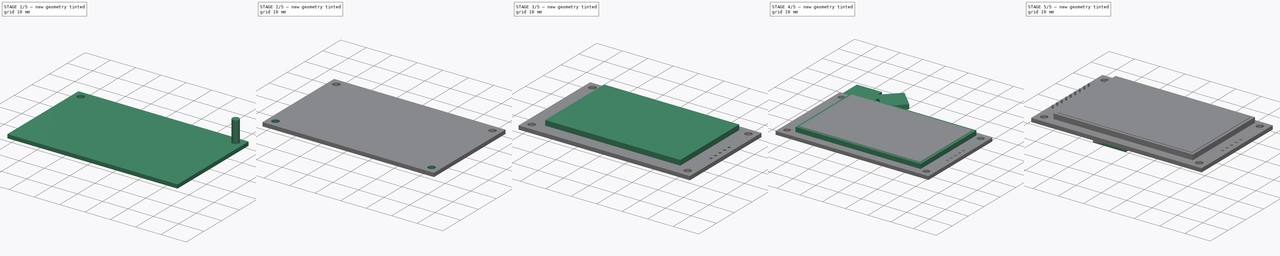
[diagram: build sequence overview — one tinted view per stage of 5, left to right]
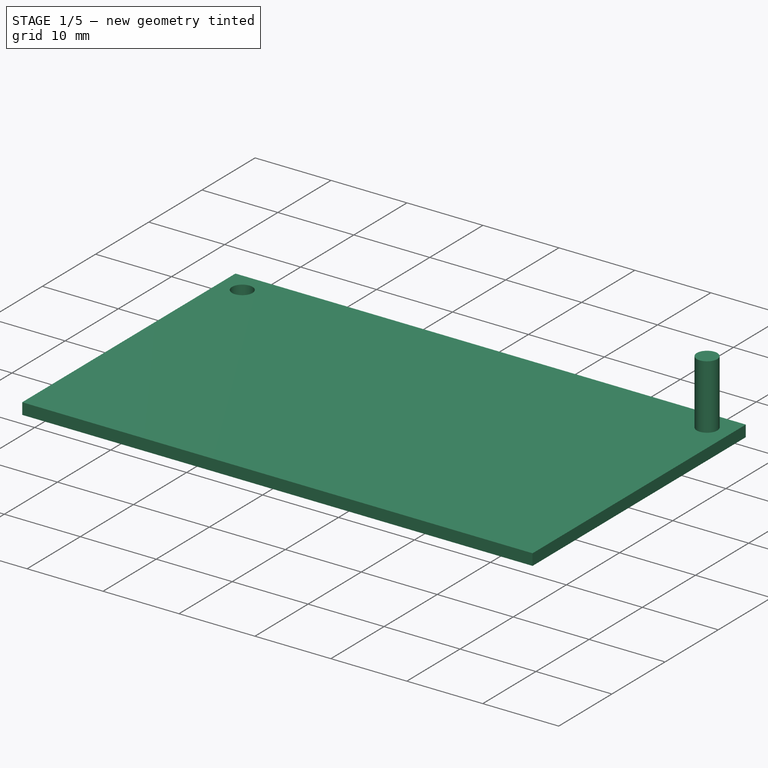
[diagram: stage 1 of 5 — iso view after this stage's code; geometry added in this stage tinted green]
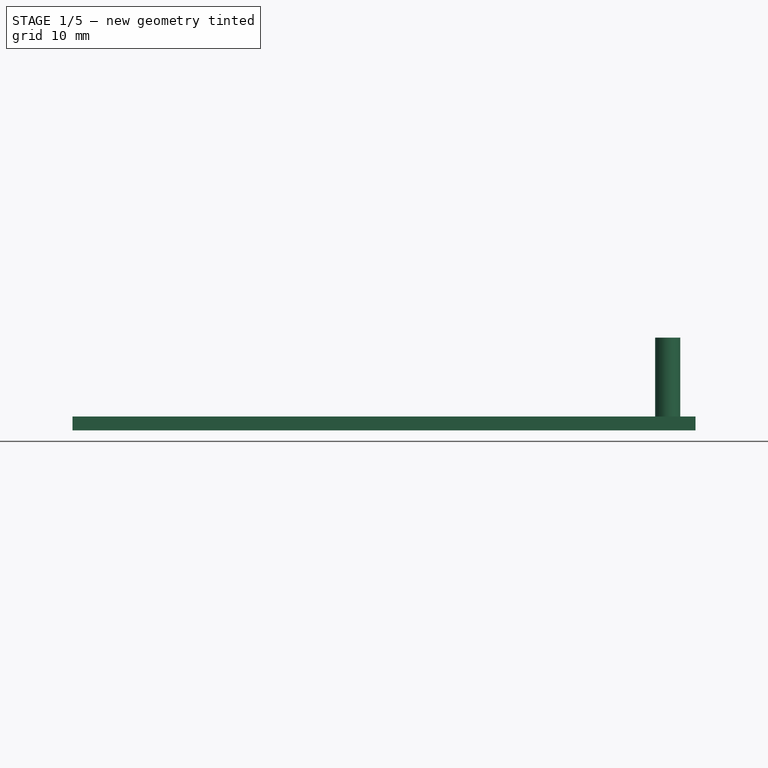
[diagram: stage 1 of 5 — front view after this stage's code; geometry added in this stage tinted green]
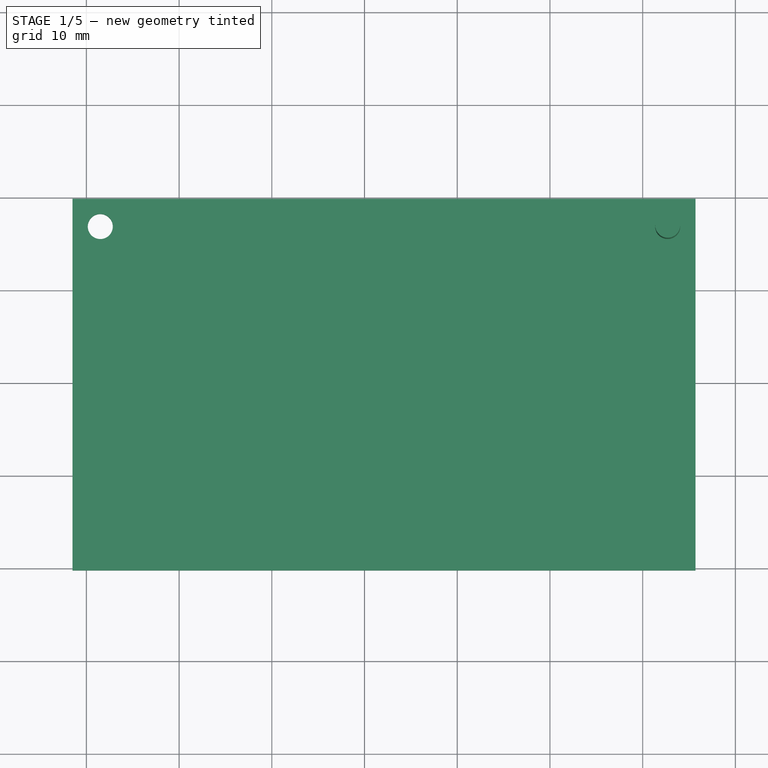
[diagram: stage 1 of 5 — top view after this stage's code; geometry added in this stage tinted green]
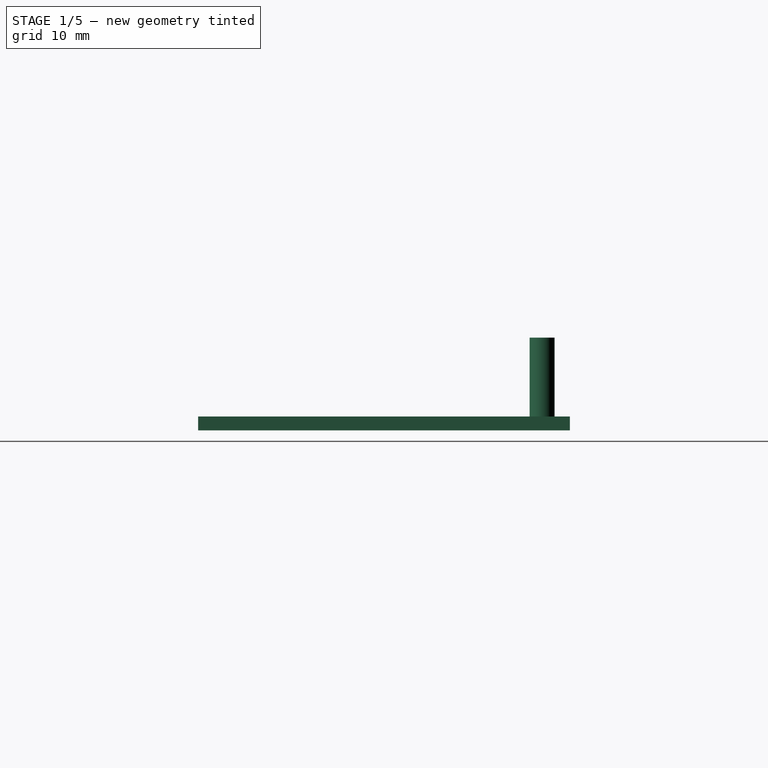
[diagram: stage 1 of 5 — right view after this stage's code; geometry added in this stage tinted green]
FCSTD DOCUMENT  (FreeCAD 0.17R11223 (Git))
Label: CR2013-MI2120_4
License: All rights reserved
LicenseURL: http://en.wikipedia.org/wiki/All_rights_reserved
objects: Part::Box×7, Part::Cut×7, Part::Cylinder×5, Part::FeaturePython×2, Sketcher::SketchObject×1, PartDesign::Pad×1, PartDesign::Body×1
note: 25 computed .brp shape members not serialized (recipe doc carries the construction recipe); baked Part::Feature solids carry a one-line shape summary decoded from their .brp

FEATURE [Sketcher::SketchObject] Sketch
  MapMode = 5
  Support = -> [XY_Plane]
  sketch-geometry (4):
    g0: LineSegment StartX=-1.5 StartY=9.89 StartZ=0 EndX=65.7 EndY=9.89 EndZ=0
    g1: LineSegment StartX=65.7 StartY=9.89 StartZ=0 EndX=65.7 EndY=-30.21 EndZ=0
    g2: LineSegment StartX=65.7 StartY=-30.21 StartZ=0 EndX=-1.5 EndY=-30.21 EndZ=0
    g3: LineSegment StartX=-1.5 StartY=-30.21 StartZ=0 EndX=-1.5 EndY=9.89 EndZ=0
  constraints (12):
    c: Coincident(g0,g1)
    c: Coincident(g1,g2)
    c: Coincident(g2,g3)
    c: Coincident(g3,g0)
    c: Horizontal(g0)
    c: Horizontal(g2)
    c: Vertical(g1)
    c: Vertical(g3)
    c: DistanceX(g0,g0) = 67.2
    c: DistanceY(g1,g0) = 40.1
    c: DistanceY(g-1,g0) = 9.89
    c: DistanceX(g0,g-1) = 1.5
FEATURE [PartDesign::Pad] Pad
  Length = 1.5
  Length2 = 100
  Profile = -> Sketch
  Type = 0
FEATURE [Part::Cylinder] Cylinder  label="Hole001"
  Angle = 360
  AttacherType = Attacher::AttachEngine3D
  Height = 10
  Placement = pos=(1.5,6.89,1.4) rot=(0,0,1;0rad)
  Radius = 1.35
FEATURE [Part::Cylinder] Cylinder003  label="Hole004"
  Angle = 360
  AttacherType = Attacher::AttachEngine3D
  Height = 10
  Placement = pos=(62.7,6.89,1.4) rot=(0,0,1;0rad)
  Radius = 1.35
FEATURE [Part::Cut] Cut002
  Base = -> Body
  Tool = -> Cylinder
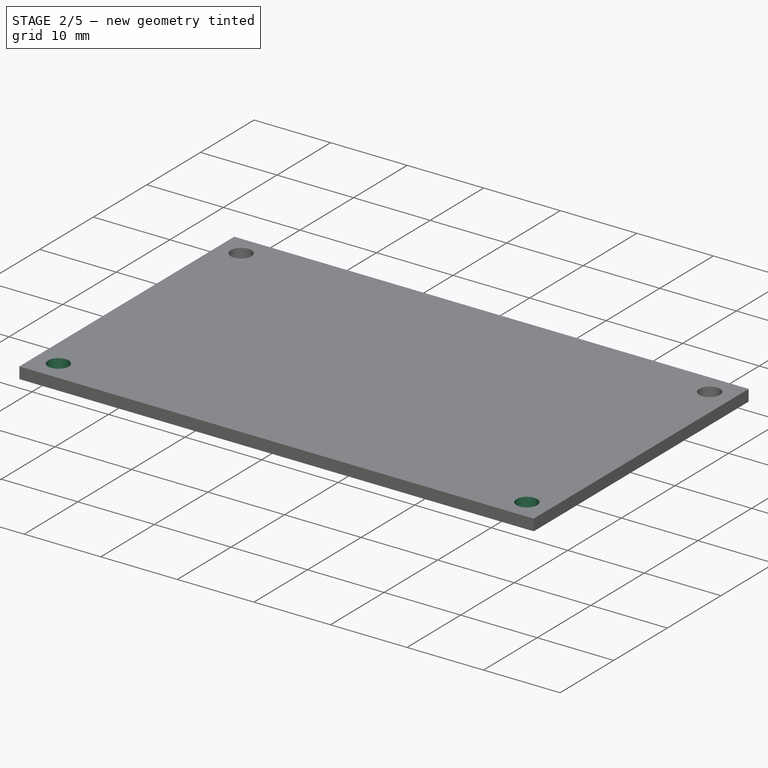
[diagram: stage 2 of 5 — iso view after this stage's code; geometry added in this stage tinted green]
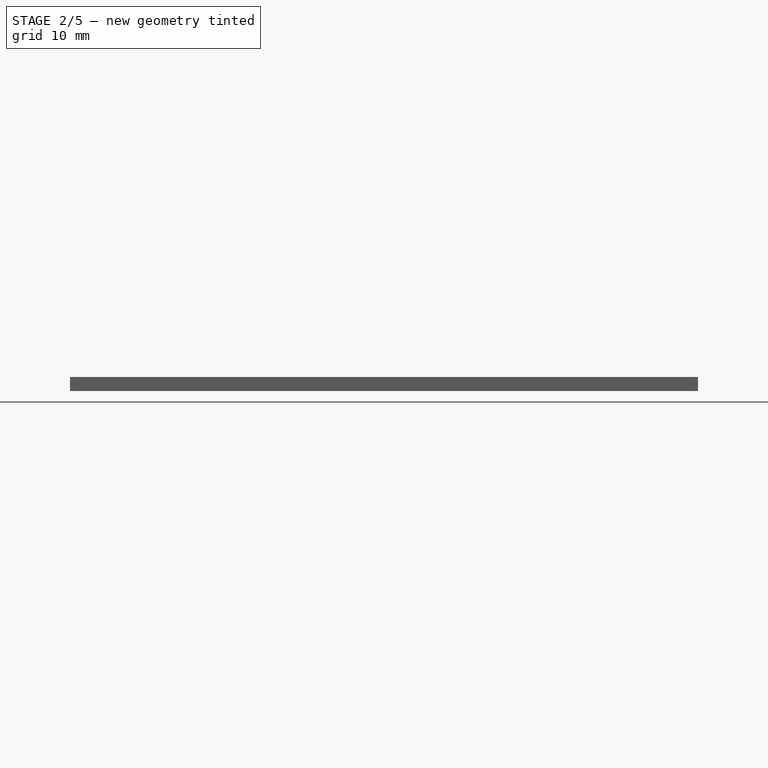
[diagram: stage 2 of 5 — front view after this stage's code; geometry added in this stage tinted green]
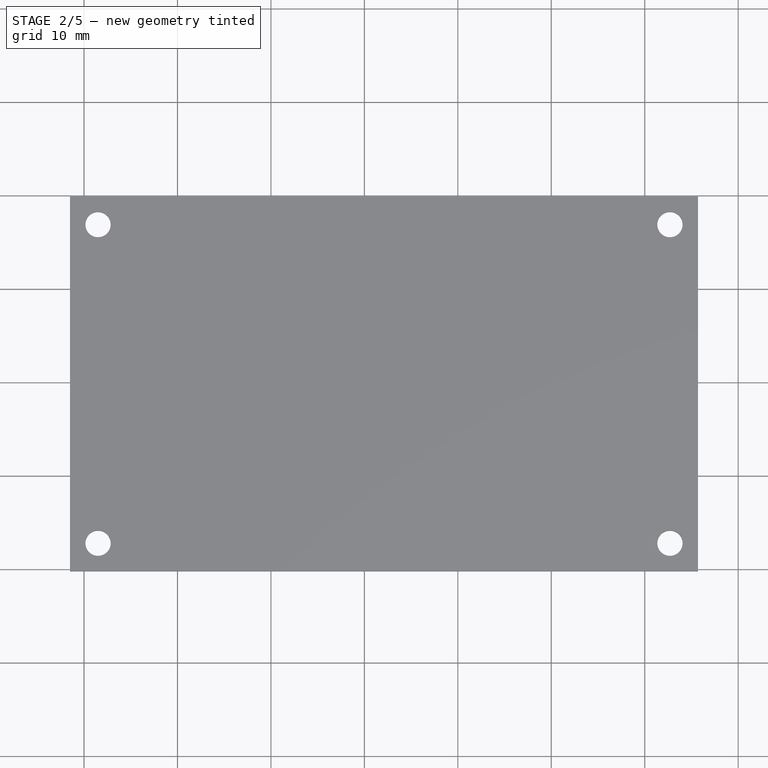
[diagram: stage 2 of 5 — top view after this stage's code; geometry added in this stage tinted green]
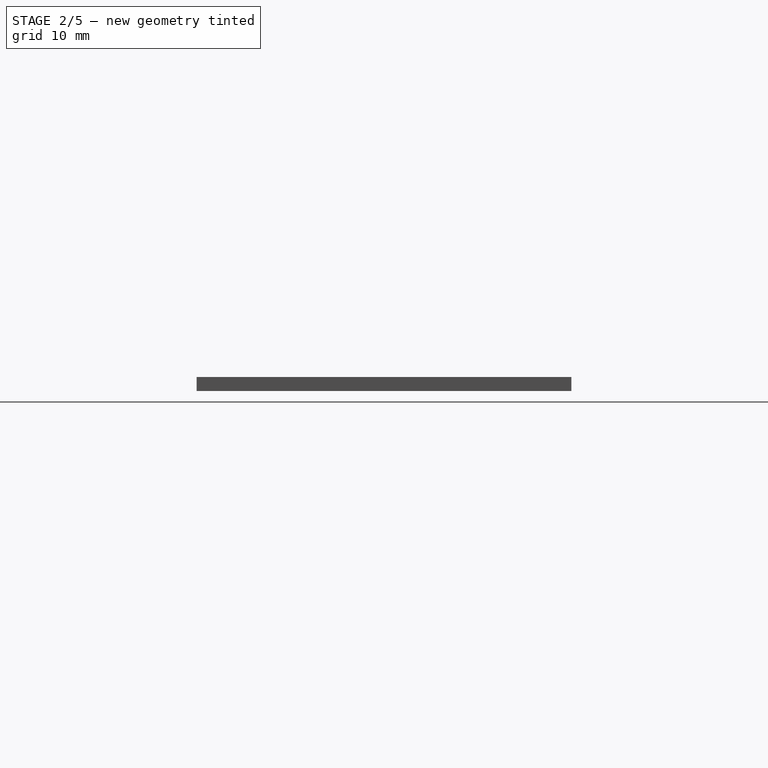
[diagram: stage 2 of 5 — right view after this stage's code; geometry added in this stage tinted green]
FEATURE [Part::Cylinder] Cylinder001  label="Hole002"
  Angle = 360
  AttacherType = Attacher::AttachEngine3D
  Height = 10
  Placement = pos=(1.5,-27.21,1.4) rot=(0,0,1;0rad)
  Radius = 1.35
FEATURE [Part::Cylinder] Cylinder002  label="Hole003"
  Angle = 360
  AttacherType = Attacher::AttachEngine3D
  Height = 10
  Placement = pos=(62.7,-27.21,1.4) rot=(0,0,1;0rad)
  Radius = 1.35
FEATURE [Part::Cut] Cut003
  Base = -> Cut002
  Tool = -> Cylinder003
FEATURE [Part::Cut] Cut004
  Base = -> Cut003
  Tool = -> Cylinder002
FEATURE [Part::Cut] Cut005
  Base = -> Cut004
  Tool = -> Cylinder001
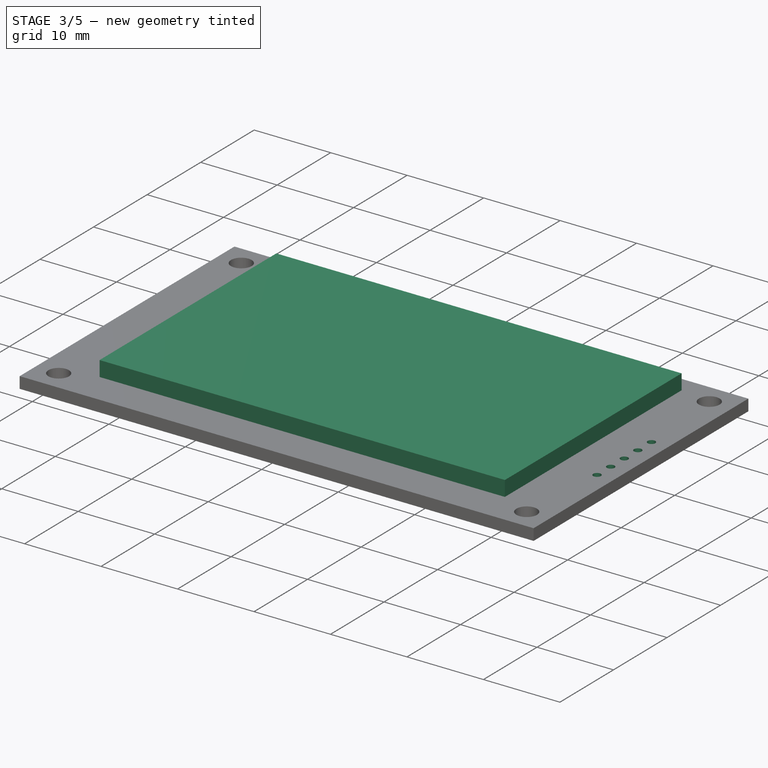
[diagram: stage 3 of 5 — iso view after this stage's code; geometry added in this stage tinted green]
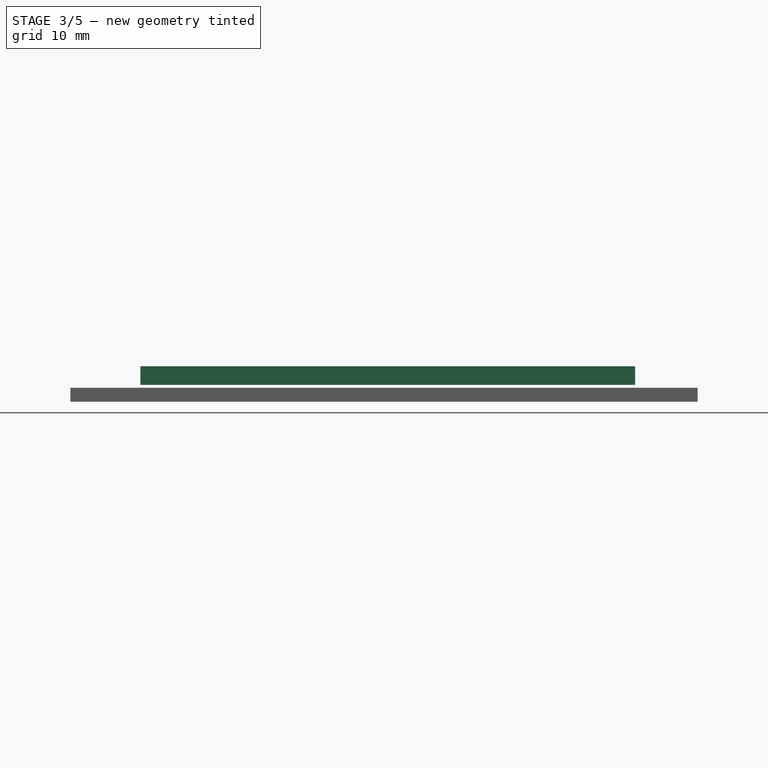
[diagram: stage 3 of 5 — front view after this stage's code; geometry added in this stage tinted green]
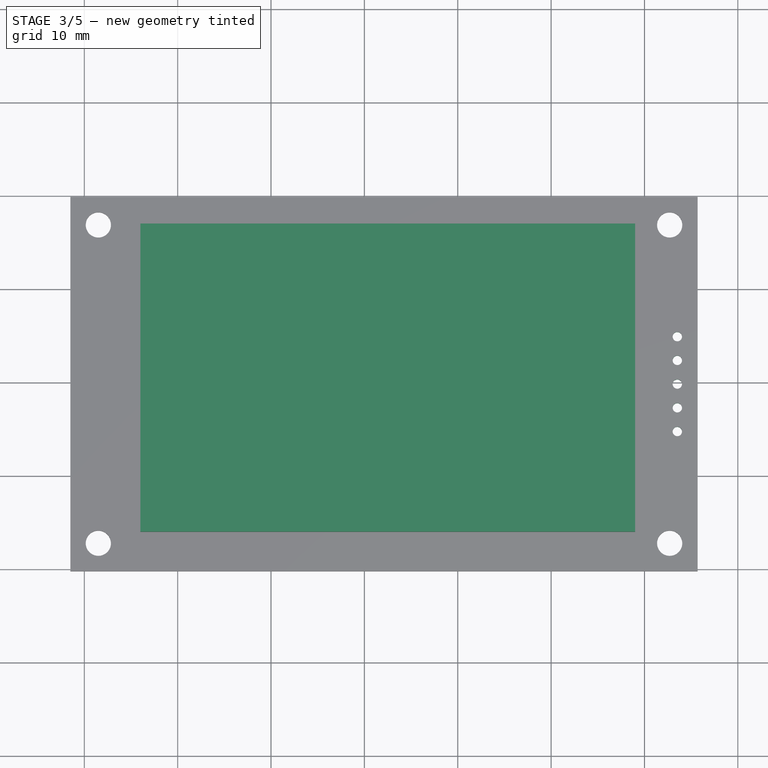
[diagram: stage 3 of 5 — top view after this stage's code; geometry added in this stage tinted green]
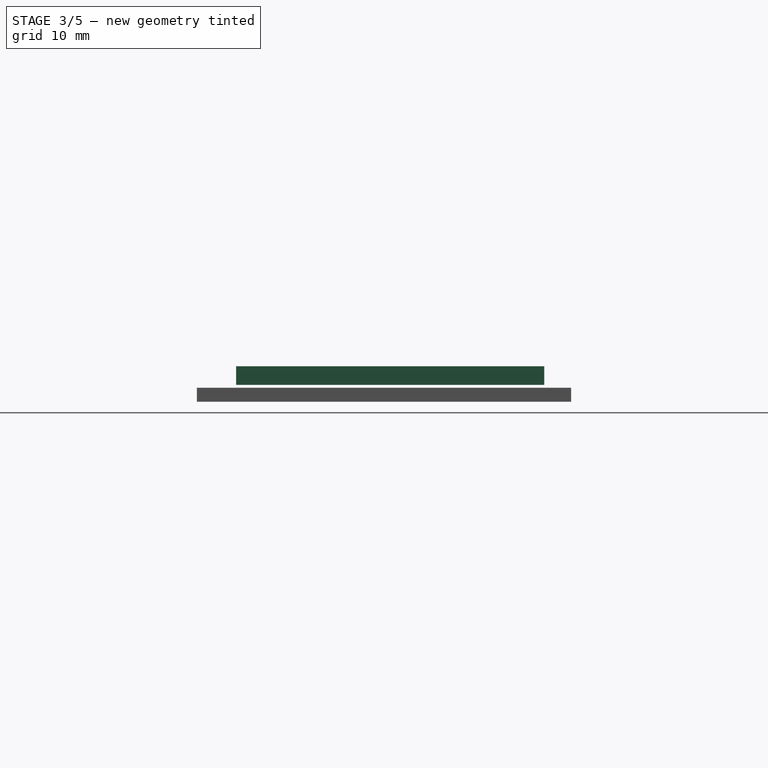
[diagram: stage 3 of 5 — right view after this stage's code; geometry added in this stage tinted green]
FEATURE [Part::Cylinder] Cylinder004  label="Cylinder"
  Angle = 360
  AttacherType = Attacher::AttachEngine3D
  Height = 10
  Placement = pos=(0,-5.08,0) rot=(0,0,1;0rad)
  Radius = 0.5
FEATURE [Part::FeaturePython] Array001  # Draft array (typed FeaturePython)
  Angle = 360
  ArrayType = 0
  Axis = (0,0,1)
  Base = -> Cylinder004
  Center = (0,0,0)
  Fuse = false
  IntervalAxis = (0,0,0)
  IntervalX = (1,0,0)
  IntervalY = (0,2.54,0)
  IntervalZ = (0,0,0)
  NumberPolar = 1
  NumberX = 1
  NumberY = 5
  NumberZ = 1
  Placement = pos=(63.52,-10.16,0) rot=(0,0,1;0rad)
FEATURE [Part::Box] Box006  label="Display element"
  AttacherType = Attacher::AttachEngine3D
  Height = 2
  Length = 53
  Placement = pos=(6,-26,3.2) rot=(0,0,1;0rad)
  Width = 33
FEATURE [Part::Cut] Cut006  label="PCB"
  Base = -> Cut005
  Tool = -> Array001
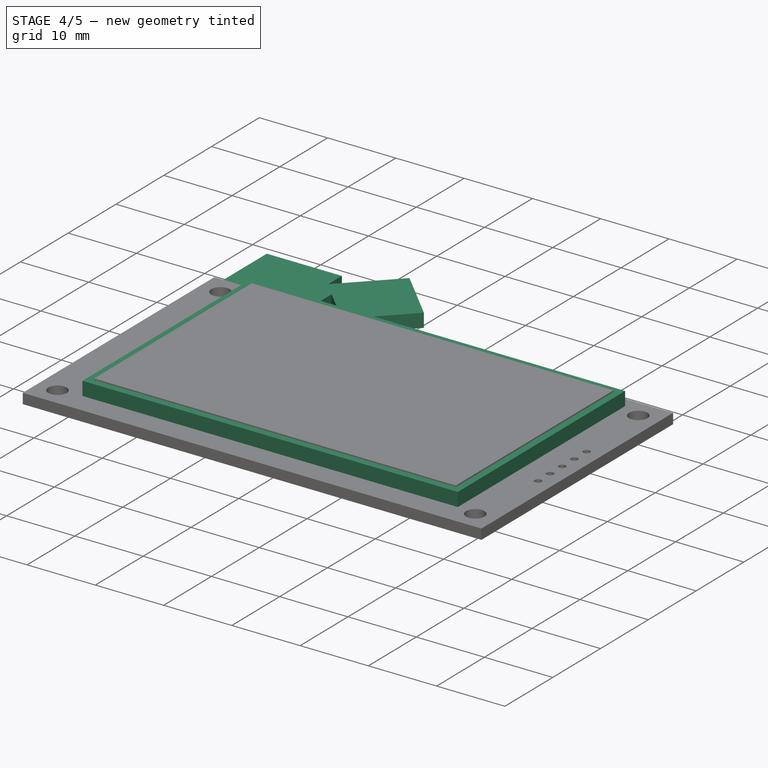
[diagram: stage 4 of 5 — iso view after this stage's code; geometry added in this stage tinted green]
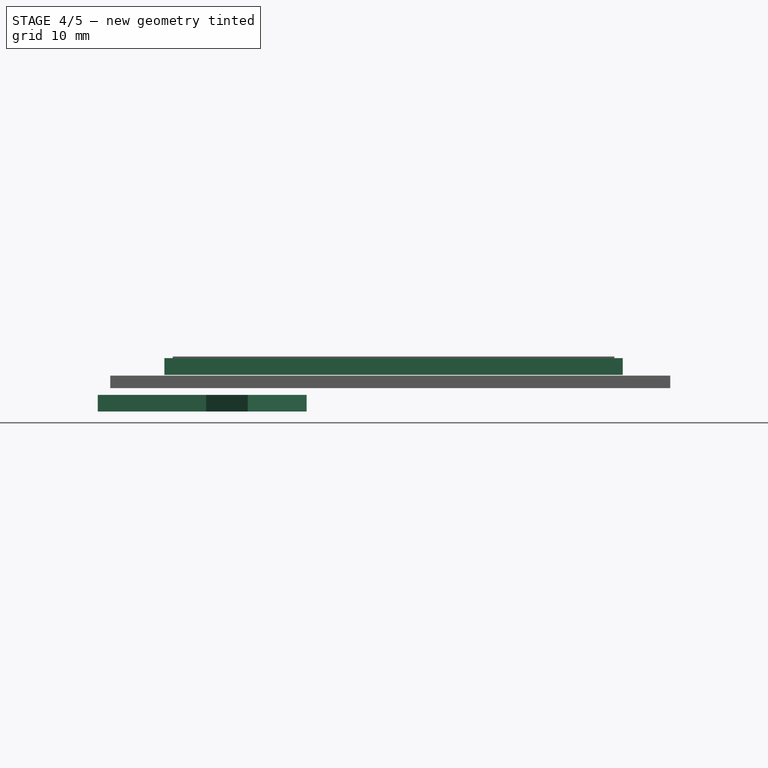
[diagram: stage 4 of 5 — front view after this stage's code; geometry added in this stage tinted green]
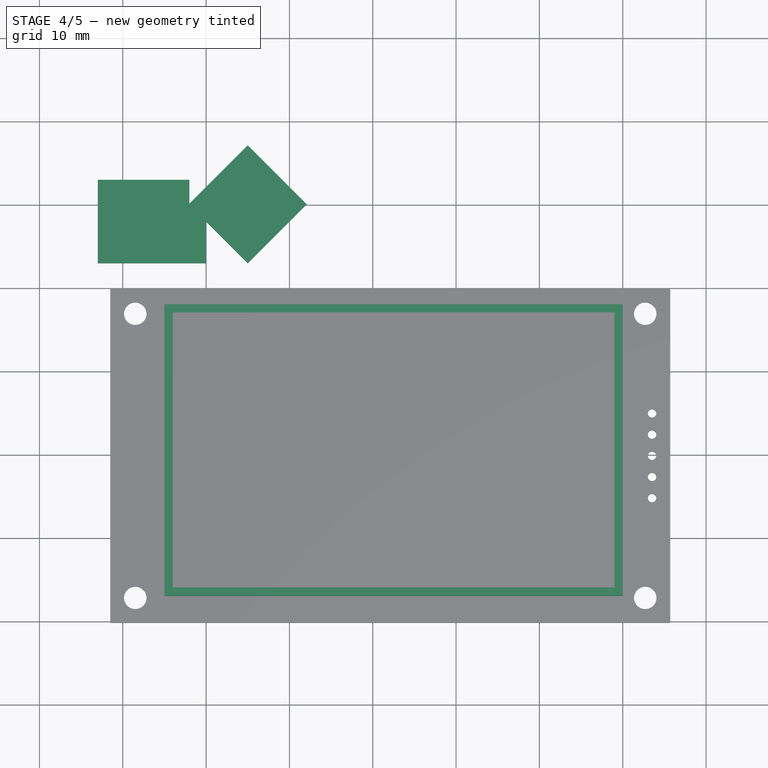
[diagram: stage 4 of 5 — top view after this stage's code; geometry added in this stage tinted green]
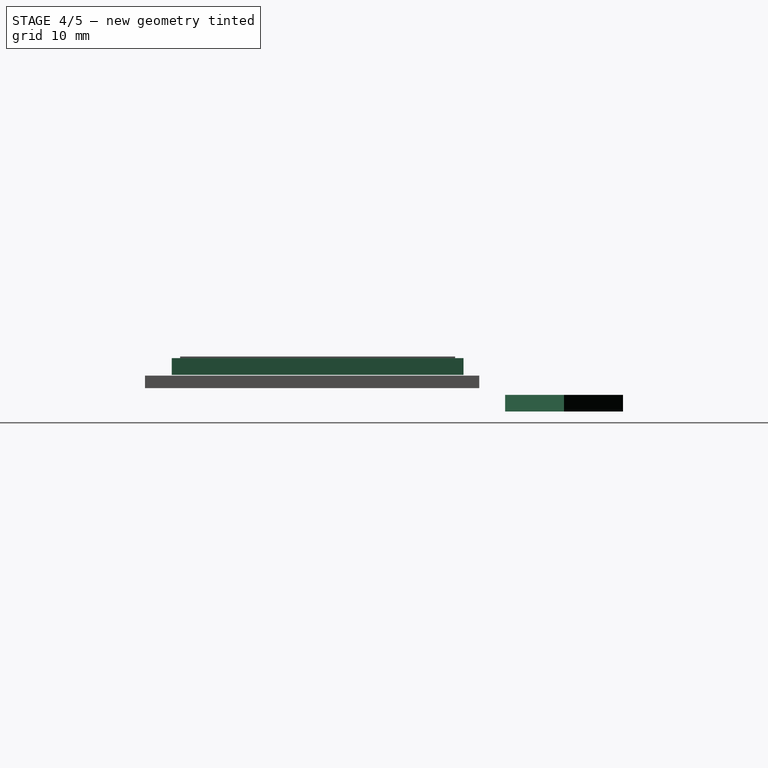
[diagram: stage 4 of 5 — right view after this stage's code; geometry added in this stage tinted green]
FEATURE [Part::Box] Box002  label="Kub002"
  AttacherType = Attacher::AttachEngine3D
  Height = 2
  Length = 13
  Placement = pos=(-3,13,-1.4) rot=(0,0,1;0rad)
  Width = 10
FEATURE [Part::Box] Box003  label="Kub003"
  AttacherType = Attacher::AttachEngine3D
  Height = 2
  Length = 10
  Placement = pos=(8,20,-1.4) rot=(0,0,1;0rad)
  Width = 10
FEATURE [Part::Box] Box004  label="Kub004"
  AttacherType = Attacher::AttachEngine3D
  Height = 2
  Length = 10
  Placement = pos=(15,13,-1.4) rot=(0,0,1;0.785398rad)
  Width = 10
FEATURE [Part::Cut] Cut
  Base = -> Box002
  Tool = -> Box003
FEATURE [Part::Box] Box005  label="Display frame"
  AttacherType = Attacher::AttachEngine3D
  Height = 2
  Length = 55
  Placement = pos=(5,-27,3) rot=(0,0,1;0rad)
  Width = 35
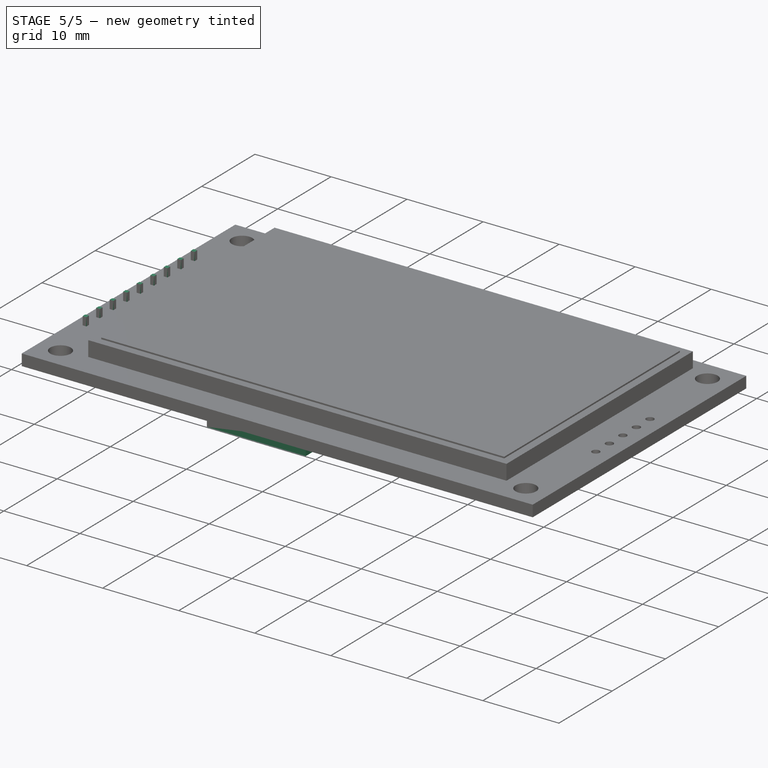
[diagram: stage 5 of 5 — iso view after this stage's code; geometry added in this stage tinted green]
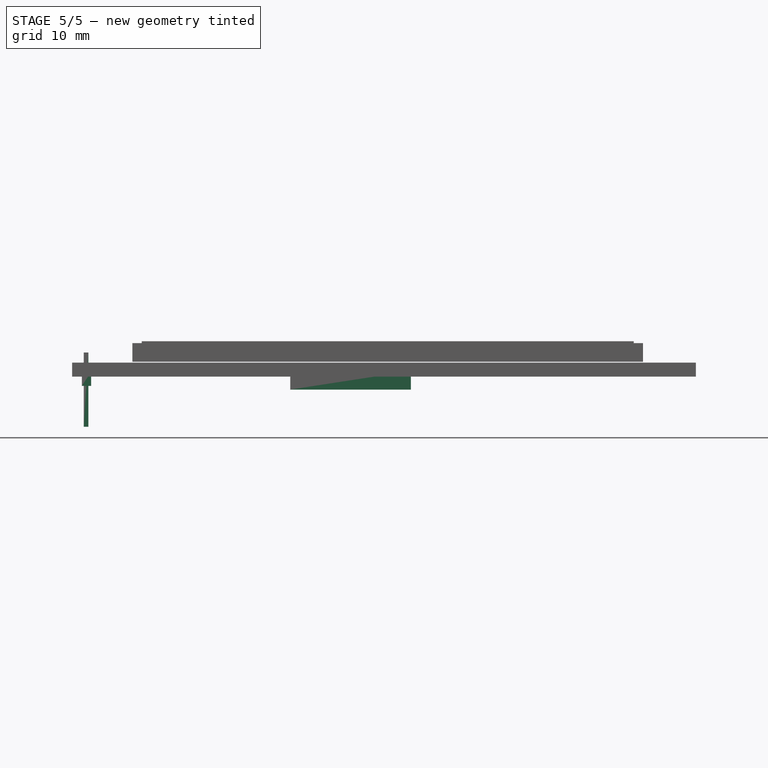
[diagram: stage 5 of 5 — front view after this stage's code; geometry added in this stage tinted green]
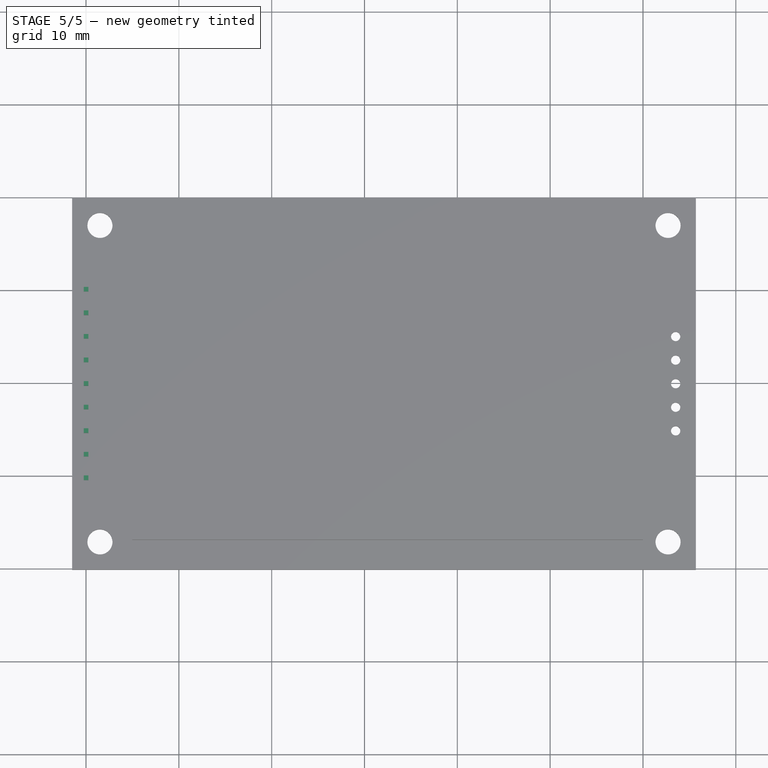
[diagram: stage 5 of 5 — top view after this stage's code; geometry added in this stage tinted green]
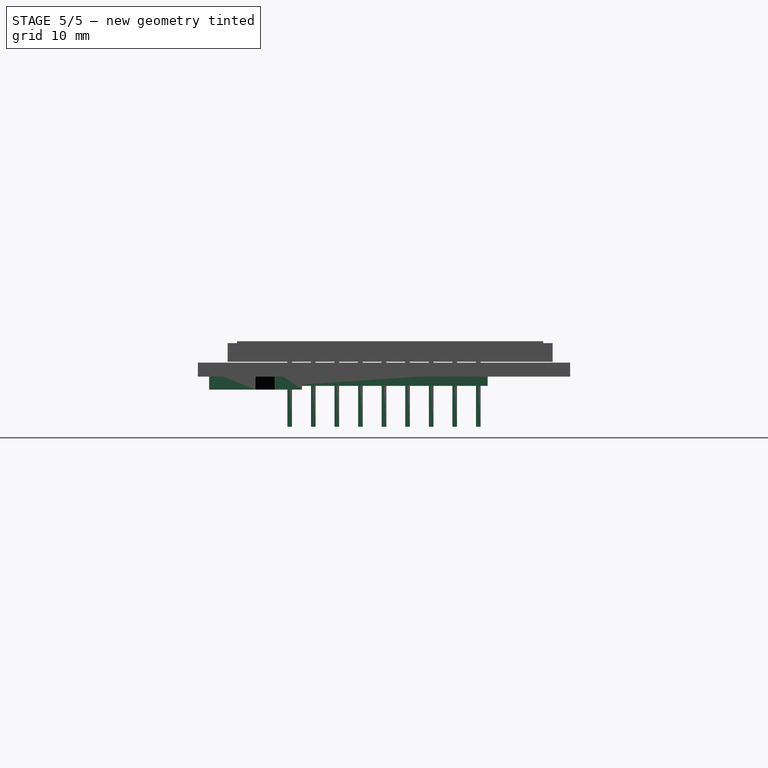
[diagram: stage 5 of 5 — right view after this stage's code; geometry added in this stage tinted green]
FEATURE [PartDesign::Body] Body
  Group = -> [Sketch,Pad]
  Origin = -> BodyOrigin
  Placement = pos=(0,0,1.4) rot=(0,0,1;0rad)
  Tip = -> Pad
FEATURE [Part::Box] Box  label="Kub"
  AttacherType = Attacher::AttachEngine3D
  Height = 8
  Length = 0.5
  Placement = pos=(0,0,-4) rot=(0,0,1;0rad)
  Width = 0.5
FEATURE [Part::FeaturePython] Array  # Draft array (typed FeaturePython)
  Angle = 360
  ArrayType = 0
  Axis = (0,0,1)
  Base = -> Box
  Center = (0,0,0)
  Fuse = false
  IntervalAxis = (0,0,0)
  IntervalX = (1,0,0)
  IntervalY = (0,-2.54,0)
  IntervalZ = (0,0,0)
  NumberPolar = 1
  NumberX = 1
  NumberY = 9
  NumberZ = 1
  Placement = pos=(-0.25,-0.25,0) rot=(0,0,1;0rad)
FEATURE [Part::Box] Box001  label="Kub001"
  AttacherType = Attacher::AttachEngine3D
  Height = 1.5
  Length = 1
  Placement = pos=(-0.45,-21,0.4) rot=(0,0,1;0rad)
  Width = 22
FEATURE [Part::Cut] Cut001  label="SD pocket"
  Base = -> Cut
  Placement = pos=(25,-42,1.4) rot=(0,0,1;0rad)
  Tool = -> Box004
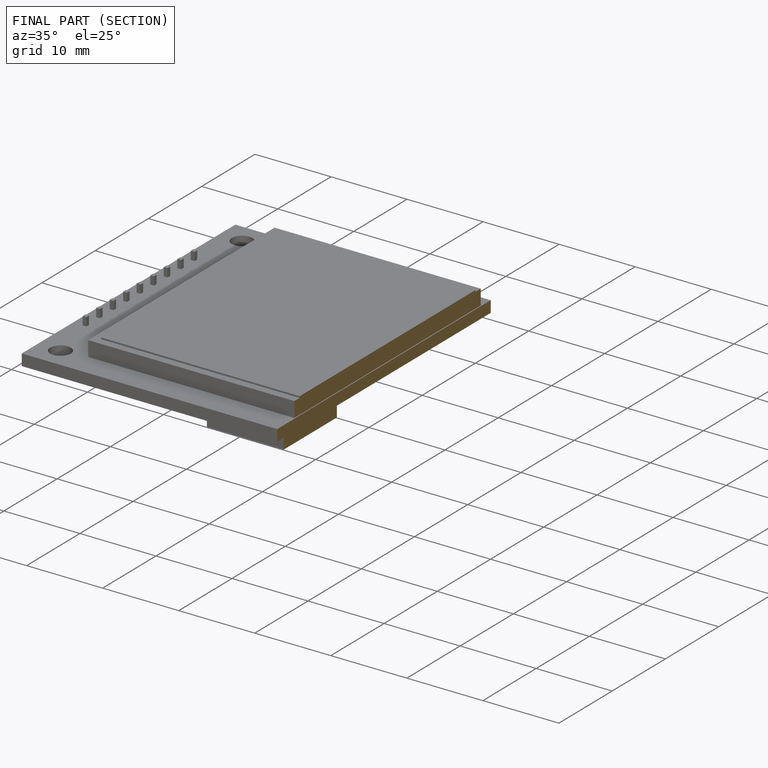
[diagram: finished part — half-section view (interior)]
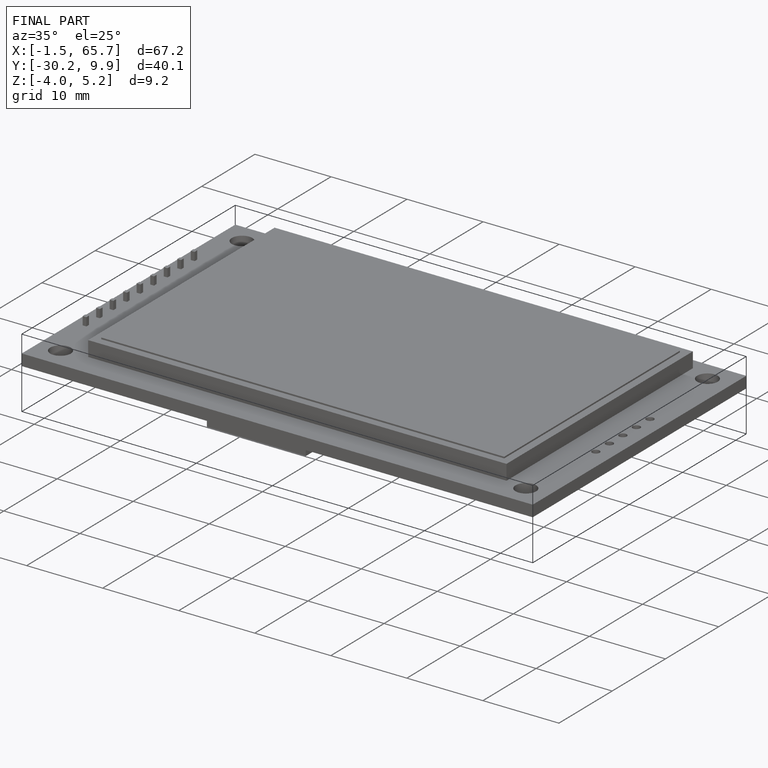
[diagram: finished part — iso view with bounding-box wireframe]
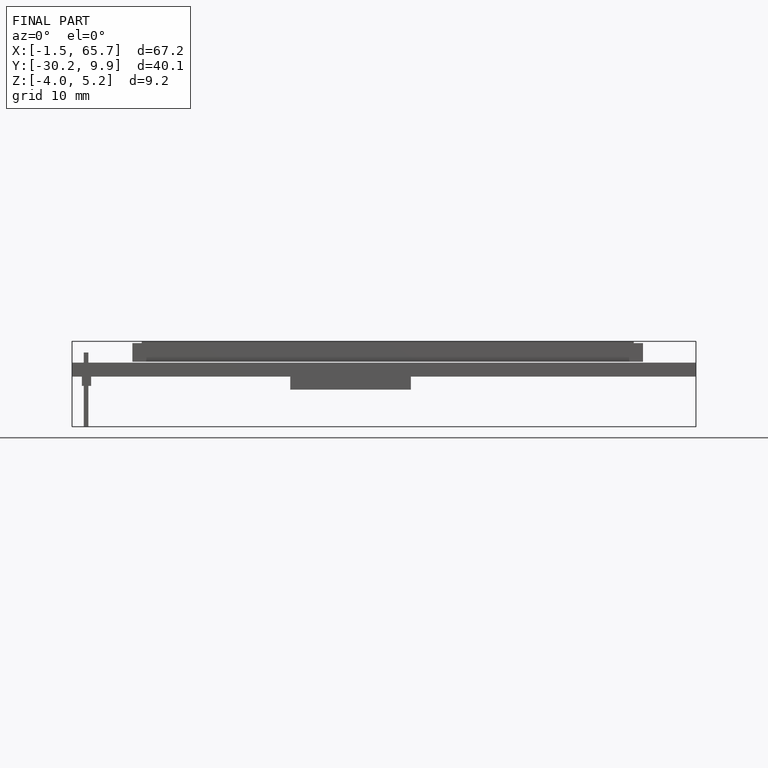
[diagram: finished part — front view with bounding-box wireframe]
